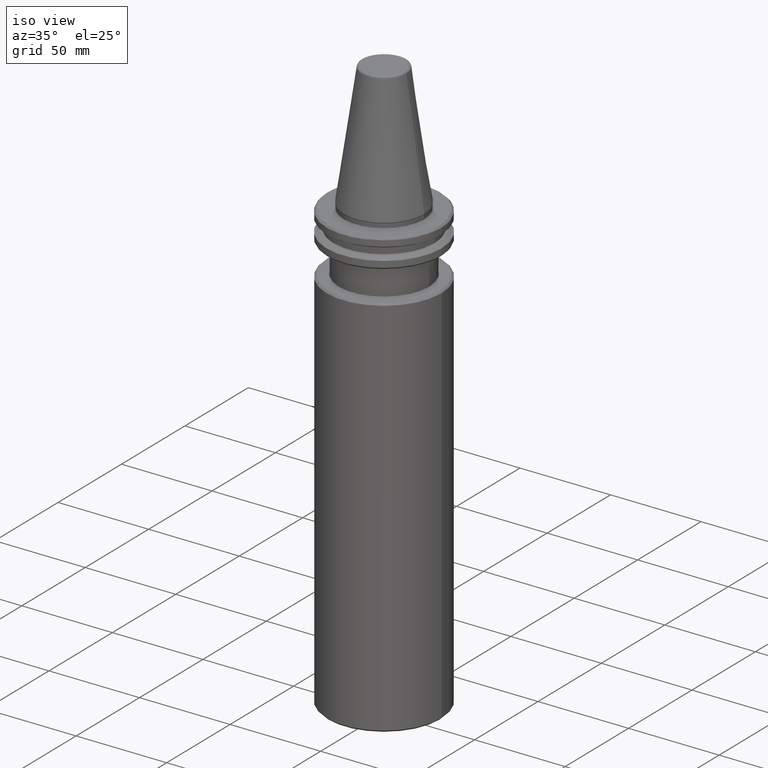
[diagram: clean part render]
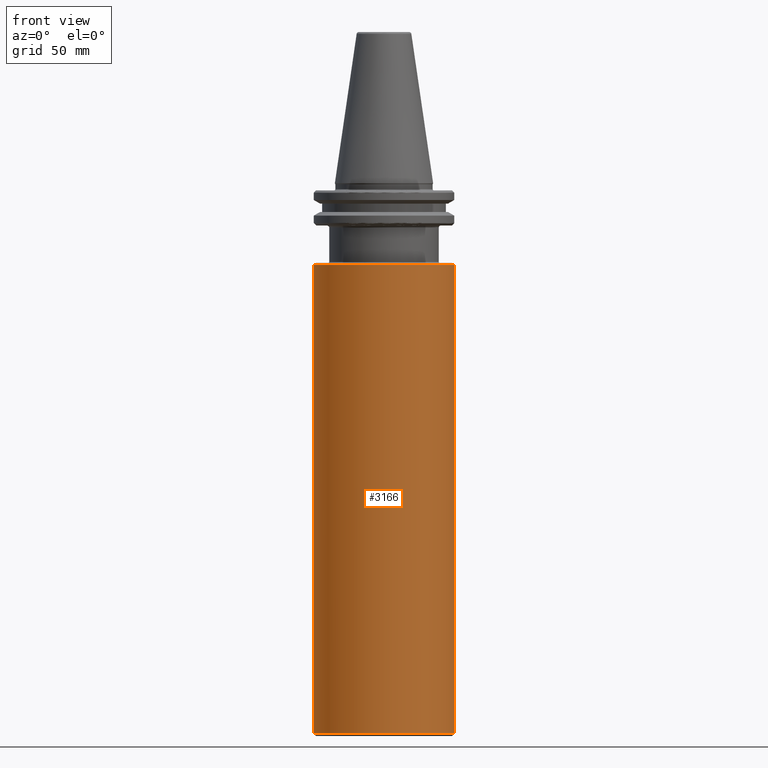
[diagram: tour spotlight — one face highlighted and labeled with its STEP entity id]
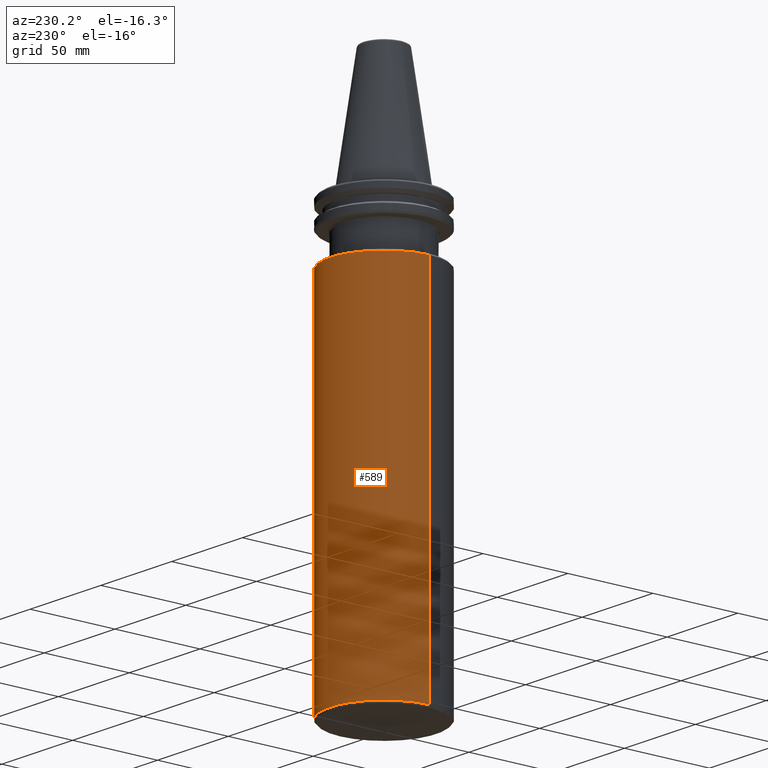
[diagram: tour spotlight — one face highlighted and labeled with its STEP entity id]
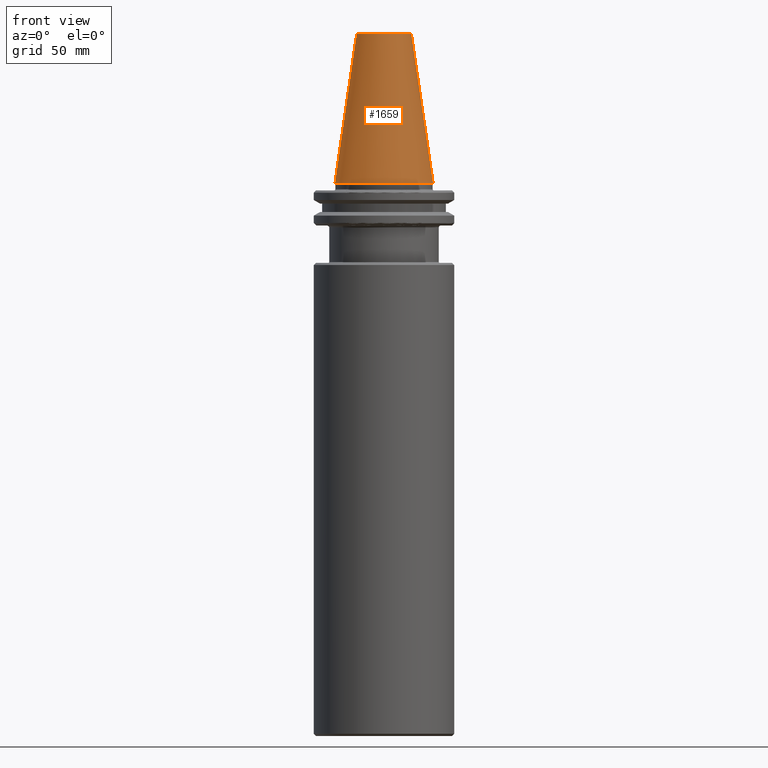
[diagram: tour spotlight — one face highlighted and labeled with its STEP entity id]
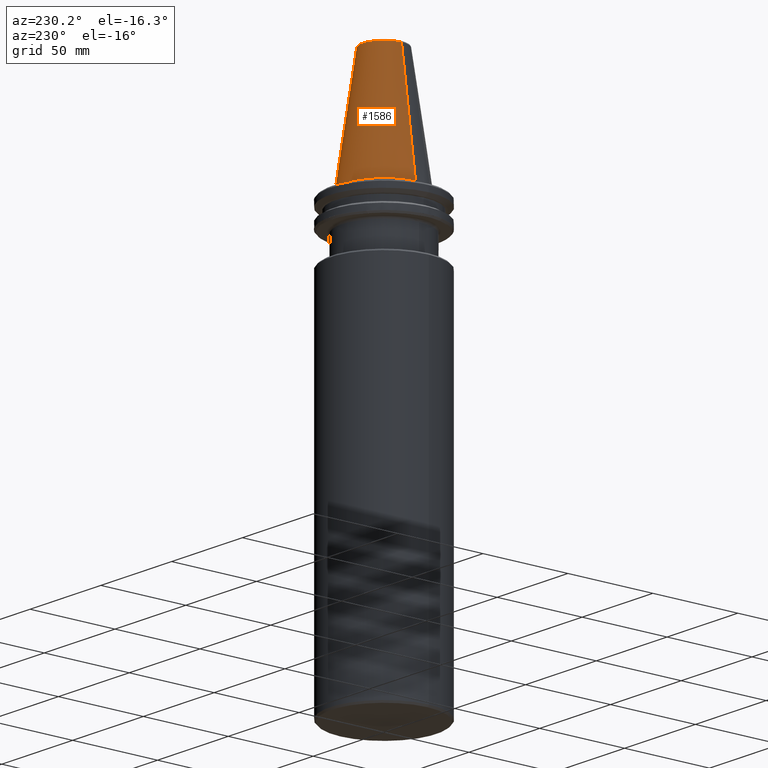
[diagram: tour spotlight — one face highlighted and labeled with its STEP entity id]
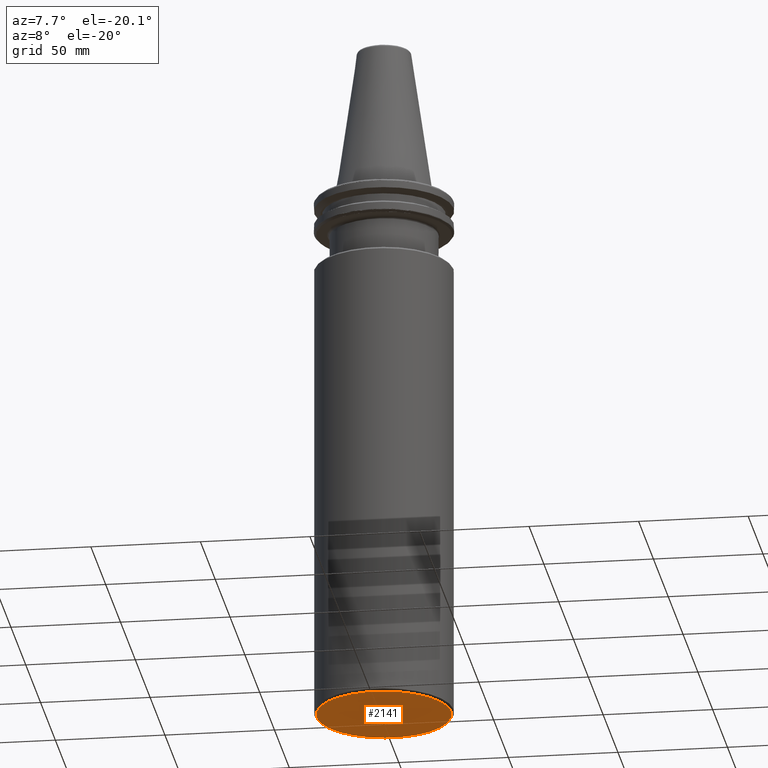
[diagram: tour spotlight — one face highlighted and labeled with its STEP entity id]
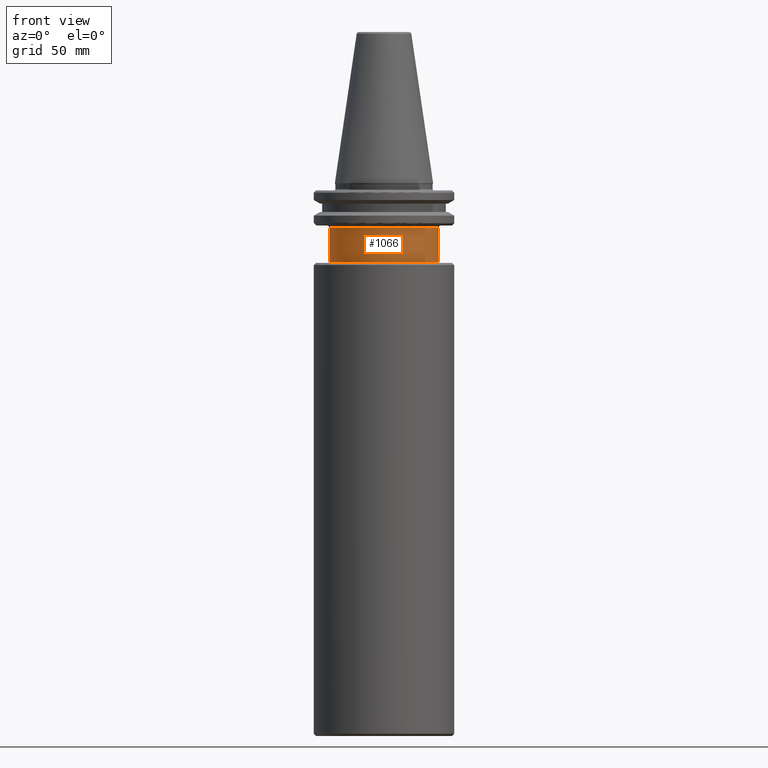
[diagram: tour spotlight — one face highlighted and labeled with its STEP entity id]
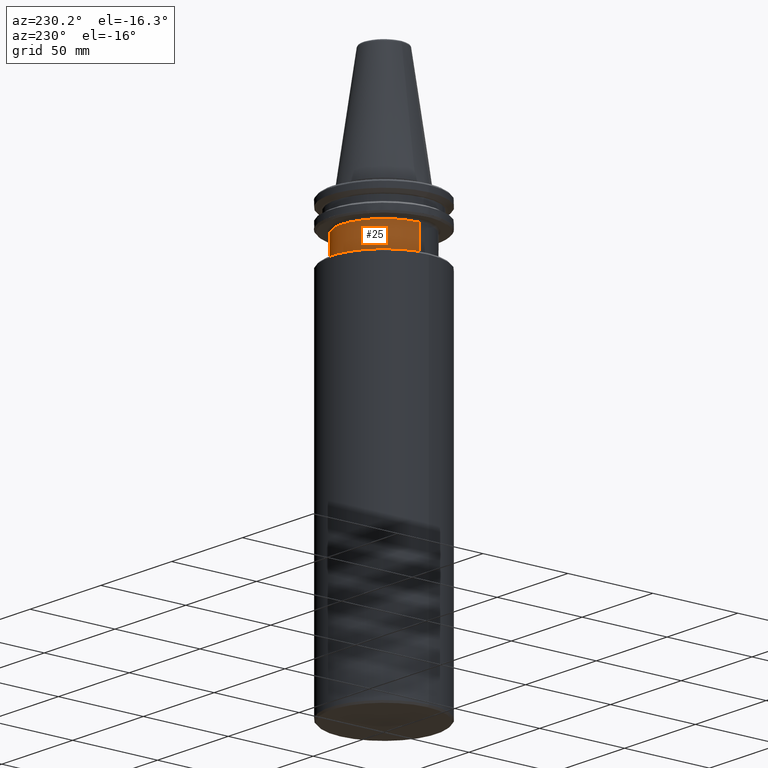
[diagram: tour spotlight — one face highlighted and labeled with its STEP entity id]
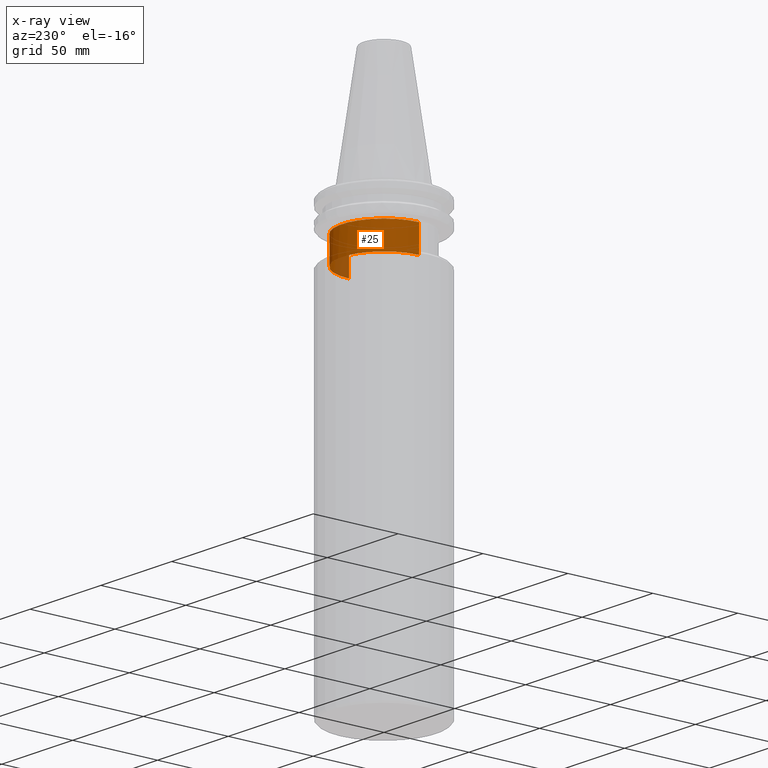
[diagram: x-ray of the same camera — body ghosted, this tour face saturated]
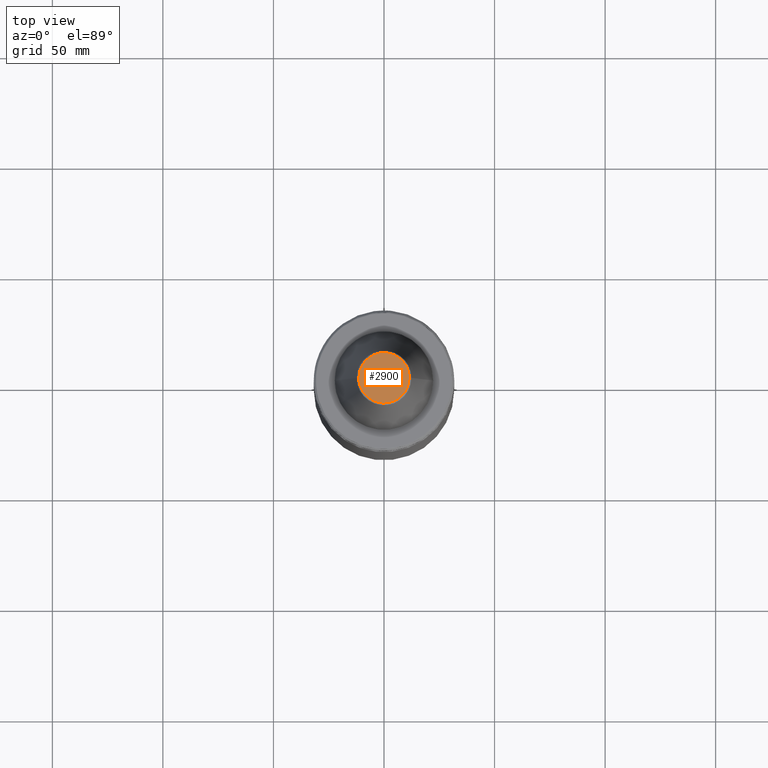
[diagram: tour spotlight — one face highlighted and labeled with its STEP entity id]
A machine part: a face-by-face anatomy tour. The part has 78 B-rep faces; the first image is the clean iso view, then the 8 largest visible faces are spotlighted one at a time (largest first), each with its STEP entity span.

Face 1 — front view, entity #3166. In plain terms, the highlighted cylindrical surface (partial cylindrical patch) has radius 31.75 mm, axis along (0, 0, 1).
Definition (entity closure, byte-faithful):
#197 = ORIENTED_EDGE ( 'NONE', *, *, #545, .F. ) ;
#265 = EDGE_CURVE ( 'NONE', #696, #858, #1075, .T. ) ;
#294 = DIRECTION ( 'NONE',  ( 1.000000000000000000, 0.0000000000000000000, 0.0000000000000000000 ) ) ;
#545 = EDGE_CURVE ( 'NONE', #696, #1625, #2609, .T. ) ;
#696 = VERTEX_POINT ( 'NONE', #3271 ) ;
#814 = FACE_OUTER_BOUND ( 'NONE', #1032, .T. ) ;
#841 = AXIS2_PLACEMENT_3D ( 'NONE', #2260, #1942, #294 ) ;
#858 = VERTEX_POINT ( 'NONE', #1643 ) ;
#1032 = EDGE_LOOP ( 'NONE', ( #197, #2545, #1083, #2692 ) ) ;
#1041 = DIRECTION ( 'NONE',  ( 0.0000000000000000000, 0.0000000000000000000, 1.000000000000000000 ) ) ;
#1047 = CARTESIAN_POINT ( 'NONE',  ( 31.75000000000000000, 0.0000000000000000000, 82.95681253582424100 ) ) ;
#1075 = CIRCLE ( 'NONE', #841, 31.75000000000000000 ) ;
#1083 = ORIENTED_EDGE ( 'NONE', *, *, #1793, .T. ) ;
#1139 = LINE ( 'NONE', #1047, #2979 ) ;
#1187 = VERTEX_POINT ( 'NONE', #2678 ) ;
#1227 = VECTOR ( 'NONE', #2076, 1000.000000000000000 ) ;
#1339 = CYLINDRICAL_SURFACE ( 'NONE', #2816, 31.75000000000000000 ) ;
#1499 = AXIS2_PLACEMENT_3D ( 'NONE', #2007, #2005, #1999 ) ;
#1625 = VERTEX_POINT ( 'NONE', #2603 ) ;
#1643 = CARTESIAN_POINT ( 'NONE',  ( 31.75000000000000000, 0.0000000000000000000, -248.9999999999999700 ) ) ;
#1793 = EDGE_CURVE ( 'NONE', #858, #1187, #1139, .T. ) ;
#1853 = CIRCLE ( 'NONE', #1499, 31.75000000000000000 ) ;
#1860 = CARTESIAN_POINT ( 'NONE',  ( -31.75000000000000000, 3.888253587292846500E-015, 82.95681253582424100 ) ) ;
#1942 = DIRECTION ( 'NONE',  ( 0.0000000000000000000, 0.0000000000000000000, 1.000000000000000000 ) ) ;
#1999 = DIRECTION ( 'NONE',  ( 1.000000000000000000, 0.0000000000000000000, 0.0000000000000000000 ) ) ;
#2005 = DIRECTION ( 'NONE',  ( -0.0000000000000000000, -0.0000000000000000000, -1.000000000000000000 ) ) ;
#2007 = CARTESIAN_POINT ( 'NONE',  ( 0.0000000000000000000, 0.0000000000000000000, -37.00000000000000700 ) ) ;
#2076 = DIRECTION ( 'NONE',  ( 0.0000000000000000000, 0.0000000000000000000, 1.000000000000000000 ) ) ;
#2260 = CARTESIAN_POINT ( 'NONE',  ( 0.0000000000000000000, 0.0000000000000000000, -248.9999999999999700 ) ) ;
#2329 = EDGE_CURVE ( 'NONE', #1187, #1625, #1853, .T. ) ;
#2545 = ORIENTED_EDGE ( 'NONE', *, *, #265, .T. ) ;
#2603 = CARTESIAN_POINT ( 'NONE',  ( -31.75000000000000000, 0.0000000000000000000, -37.00000000000000700 ) ) ;
#2609 = LINE ( 'NONE', #1860, #1227 ) ;
#2678 = CARTESIAN_POINT ( 'NONE',  ( 31.75000000000000000, 3.888253587292846500E-015, -37.00000000000000700 ) ) ;
#2692 = ORIENTED_EDGE ( 'NONE', *, *, #2329, .T. ) ;
#2816 = AXIS2_PLACEMENT_3D ( 'NONE', #2824, #3015, #2947 ) ;
#2824 = CARTESIAN_POINT ( 'NONE',  ( 0.0000000000000000000, 0.0000000000000000000, 82.95681253582424100 ) ) ;
#2947 = DIRECTION ( 'NONE',  ( 1.000000000000000000, 0.0000000000000000000, 0.0000000000000000000 ) ) ;
#2979 = VECTOR ( 'NONE', #1041, 1000.000000000000000 ) ;
#3015 = DIRECTION ( 'NONE',  ( 0.0000000000000000000, 0.0000000000000000000, 1.000000000000000000 ) ) ;
#3166 = ADVANCED_FACE ( 'NONE', ( #814 ), #1339, .T. ) ;
#3271 = CARTESIAN_POINT ( 'NONE',  ( -31.75000000000000000, 3.888253587292846500E-015, -248.9999999999999700 ) ) ;

Face 2 — auxiliary view, entity #589. In plain terms, the highlighted cylindrical surface (partial cylindrical patch) has radius 31.75 mm, axis along (0, 0, 1).
Definition (entity closure, byte-faithful):
#138 = ORIENTED_EDGE ( 'NONE', *, *, #2419, .T. ) ;
#160 = ORIENTED_EDGE ( 'NONE', *, *, #1340, .T. ) ;
#432 = CARTESIAN_POINT ( 'NONE',  ( 0.0000000000000000000, 0.0000000000000000000, -248.9999999999999700 ) ) ;
#534 = DIRECTION ( 'NONE',  ( 0.0000000000000000000, 0.0000000000000000000, 1.000000000000000000 ) ) ;
#545 = EDGE_CURVE ( 'NONE', #696, #1625, #2609, .T. ) ;
#569 = DIRECTION ( 'NONE',  ( 1.000000000000000000, 0.0000000000000000000, 0.0000000000000000000 ) ) ;
#589 = ADVANCED_FACE ( 'NONE', ( #2449 ), #1936, .T. ) ;
#696 = VERTEX_POINT ( 'NONE', #3271 ) ;
#705 = EDGE_LOOP ( 'NONE', ( #160, #855, #138, #2798 ) ) ;
#855 = ORIENTED_EDGE ( 'NONE', *, *, #545, .T. ) ;
#858 = VERTEX_POINT ( 'NONE', #1643 ) ;
#955 = CIRCLE ( 'NONE', #1884, 31.75000000000000000 ) ;
#1041 = DIRECTION ( 'NONE',  ( 0.0000000000000000000, 0.0000000000000000000, 1.000000000000000000 ) ) ;
#1047 = CARTESIAN_POINT ( 'NONE',  ( 31.75000000000000000, 0.0000000000000000000, 82.95681253582424100 ) ) ;
#1139 = LINE ( 'NONE', #1047, #2979 ) ;
#1187 = VERTEX_POINT ( 'NONE', #2678 ) ;
#1227 = VECTOR ( 'NONE', #2076, 1000.000000000000000 ) ;
#1265 = DIRECTION ( 'NONE',  ( 1.000000000000000000, 0.0000000000000000000, 0.0000000000000000000 ) ) ;
#1270 = DIRECTION ( 'NONE',  ( -0.0000000000000000000, -0.0000000000000000000, -1.000000000000000000 ) ) ;
#1272 = CARTESIAN_POINT ( 'NONE',  ( 0.0000000000000000000, 0.0000000000000000000, -37.00000000000000700 ) ) ;
#1340 = EDGE_CURVE ( 'NONE', #858, #696, #955, .T. ) ;
#1625 = VERTEX_POINT ( 'NONE', #2603 ) ;
#1643 = CARTESIAN_POINT ( 'NONE',  ( 31.75000000000000000, 0.0000000000000000000, -248.9999999999999700 ) ) ;
#1793 = EDGE_CURVE ( 'NONE', #858, #1187, #1139, .T. ) ;
#1831 = CARTESIAN_POINT ( 'NONE',  ( 0.0000000000000000000, 0.0000000000000000000, 82.95681253582424100 ) ) ;
#1860 = CARTESIAN_POINT ( 'NONE',  ( -31.75000000000000000, 3.888253587292846500E-015, 82.95681253582424100 ) ) ;
#1884 = AXIS2_PLACEMENT_3D ( 'NONE', #432, #534, #569 ) ;
#1936 = CYLINDRICAL_SURFACE ( 'NONE', #3199, 31.75000000000000000 ) ;
#2076 = DIRECTION ( 'NONE',  ( 0.0000000000000000000, 0.0000000000000000000, 1.000000000000000000 ) ) ;
#2310 = CIRCLE ( 'NONE', #3231, 31.75000000000000000 ) ;
#2419 = EDGE_CURVE ( 'NONE', #1625, #1187, #2310, .T. ) ;
#2449 = FACE_OUTER_BOUND ( 'NONE', #705, .T. ) ;
#2603 = CARTESIAN_POINT ( 'NONE',  ( -31.75000000000000000, 0.0000000000000000000, -37.00000000000000700 ) ) ;
#2609 = LINE ( 'NONE', #1860, #1227 ) ;
#2678 = CARTESIAN_POINT ( 'NONE',  ( 31.75000000000000000, 3.888253587292846500E-015, -37.00000000000000700 ) ) ;
#2798 = ORIENTED_EDGE ( 'NONE', *, *, #1793, .F. ) ;
#2936 = DIRECTION ( 'NONE',  ( 1.000000000000000000, 0.0000000000000000000, 0.0000000000000000000 ) ) ;
#2979 = VECTOR ( 'NONE', #1041, 1000.000000000000000 ) ;
#3065 = DIRECTION ( 'NONE',  ( 0.0000000000000000000, 0.0000000000000000000, 1.000000000000000000 ) ) ;
#3199 = AXIS2_PLACEMENT_3D ( 'NONE', #1831, #3065, #2936 ) ;
#3231 = AXIS2_PLACEMENT_3D ( 'NONE', #1272, #1270, #1265 ) ;
#3271 = CARTESIAN_POINT ( 'NONE',  ( -31.75000000000000000, 3.888253587292846500E-015, -248.9999999999999700 ) ) ;

Face 3 — front view, entity #1659. In plain terms, the highlighted conical surface has half-angle 8.297 deg.
Definition (entity closure, byte-faithful):
#22 = EDGE_CURVE ( 'NONE', #2230, #3232, #1819, .T. ) ;
#49 = ORIENTED_EDGE ( 'NONE', *, *, #1370, .T. ) ;
#687 = EDGE_LOOP ( 'NONE', ( #2909, #49, #2680, #2161 ) ) ;
#712 = AXIS2_PLACEMENT_3D ( 'NONE', #775, #772, #760 ) ;
#760 = DIRECTION ( 'NONE',  ( 1.000000000000000000, 0.0000000000000000000, 9.822541477422708000E-017 ) ) ;
#772 = DIRECTION ( 'NONE',  ( -0.0000000000000000000, -0.0000000000000000000, -1.000000000000000000 ) ) ;
#775 = CARTESIAN_POINT ( 'NONE',  ( 0.0000000000000000000, 0.0000000000000000000, 0.0000000000000000000 ) ) ;
#829 = VECTOR ( 'NONE', #1905, 1000.000000000000000 ) ;
#857 = AXIS2_PLACEMENT_3D ( 'NONE', #3239, #1380, #1185 ) ;
#873 = EDGE_CURVE ( 'NONE', #1803, #2248, #1448, .T. ) ;
#1019 = CARTESIAN_POINT ( 'NONE',  ( 12.37469537611110800, 2.118620309691397300E-015, 67.54430822726729400 ) ) ;
#1129 = VECTOR ( 'NONE', #1868, 1000.000000000000000 ) ;
#1185 = DIRECTION ( 'NONE',  ( -1.000000000000000000, 0.0000000000000000000, 0.0000000000000000000 ) ) ;
#1370 = EDGE_CURVE ( 'NONE', #1803, #2230, #2851, .T. ) ;
#1380 = DIRECTION ( 'NONE',  ( 0.0000000000000000000, 0.0000000000000000000, -1.000000000000000000 ) ) ;
#1448 = LINE ( 'NONE', #3313, #829 ) ;
#1482 = CARTESIAN_POINT ( 'NONE',  ( -22.22500000000000100, 0.0000000000000000000, 0.0000000000000000000 ) ) ;
#1659 = ADVANCED_FACE ( 'NONE', ( #3132 ), #1692, .T. ) ;
#1692 = CONICAL_SURFACE ( 'NONE', #1744, 22.22500000000000100, 0.1448138465474190500 ) ;
#1744 = AXIS2_PLACEMENT_3D ( 'NONE', #2325, #2314, #2302 ) ;
#1803 = VERTEX_POINT ( 'NONE', #1019 ) ;
#1819 = LINE ( 'NONE', #1482, #1129 ) ;
#1838 = EDGE_CURVE ( 'NONE', #2248, #3232, #2893, .T. ) ;
#1868 = DIRECTION ( 'NONE',  ( -0.1443082272673070500, 0.0000000000000000000, -0.9895327864921743500 ) ) ;
#1905 = DIRECTION ( 'NONE',  ( 0.1443082272673070500, 1.767266086135363700E-017, -0.9895327864921743500 ) ) ;
#2161 = ORIENTED_EDGE ( 'NONE', *, *, #1838, .F. ) ;
#2197 = CARTESIAN_POINT ( 'NONE',  ( 22.22500000000000100, 2.721777511104992800E-015, 0.0000000000000000000 ) ) ;
#2230 = VERTEX_POINT ( 'NONE', #2270 ) ;
#2248 = VERTEX_POINT ( 'NONE', #2197 ) ;
#2270 = CARTESIAN_POINT ( 'NONE',  ( -12.37469537611110800, 0.0000000000000000000, 67.54430822726729400 ) ) ;
#2302 = DIRECTION ( 'NONE',  ( -1.000000000000000000, 0.0000000000000000000, 0.0000000000000000000 ) ) ;
#2314 = DIRECTION ( 'NONE',  ( 0.0000000000000000000, 0.0000000000000000000, -1.000000000000000000 ) ) ;
#2325 = CARTESIAN_POINT ( 'NONE',  ( 0.0000000000000000000, 0.0000000000000000000, 0.0000000000000000000 ) ) ;
#2680 = ORIENTED_EDGE ( 'NONE', *, *, #22, .T. ) ;
#2851 = CIRCLE ( 'NONE', #857, 12.37469537611110800 ) ;
#2893 = CIRCLE ( 'NONE', #712, 22.22500000000000500 ) ;
#2909 = ORIENTED_EDGE ( 'NONE', *, *, #873, .F. ) ;
#3132 = FACE_OUTER_BOUND ( 'NONE', #687, .T. ) ;
#3232 = VERTEX_POINT ( 'NONE', #3312 ) ;
#3239 = CARTESIAN_POINT ( 'NONE',  ( 0.0000000000000000000, 0.0000000000000000000, 67.54430822726729400 ) ) ;
#3312 = CARTESIAN_POINT ( 'NONE',  ( -22.22500000000000100, 0.0000000000000000000, 0.0000000000000000000 ) ) ;
#3313 = CARTESIAN_POINT ( 'NONE',  ( 22.22500000000000100, 2.721777511104992800E-015, 0.0000000000000000000 ) ) ;

Face 4 — auxiliary view, entity #1586. In plain terms, the highlighted conical surface has half-angle 8.297 deg.
Definition (entity closure, byte-faithful):
#22 = EDGE_CURVE ( 'NONE', #2230, #3232, #1819, .T. ) ;
#438 = ORIENTED_EDGE ( 'NONE', *, *, #22, .F. ) ;
#440 = EDGE_CURVE ( 'NONE', #2230, #1803, #3339, .T. ) ;
#829 = VECTOR ( 'NONE', #1905, 1000.000000000000000 ) ;
#873 = EDGE_CURVE ( 'NONE', #1803, #2248, #1448, .T. ) ;
#1019 = CARTESIAN_POINT ( 'NONE',  ( 12.37469537611110800, 2.118620309691397300E-015, 67.54430822726729400 ) ) ;
#1027 = ORIENTED_EDGE ( 'NONE', *, *, #1122, .F. ) ;
#1079 = AXIS2_PLACEMENT_3D ( 'NONE', #2778, #2723, #2768 ) ;
#1122 = EDGE_CURVE ( 'NONE', #3232, #2248, #2339, .T. ) ;
#1129 = VECTOR ( 'NONE', #1868, 1000.000000000000000 ) ;
#1149 = CARTESIAN_POINT ( 'NONE',  ( 0.0000000000000000000, 0.0000000000000000000, 67.54430822726729400 ) ) ;
#1448 = LINE ( 'NONE', #3313, #829 ) ;
#1482 = CARTESIAN_POINT ( 'NONE',  ( -22.22500000000000100, 0.0000000000000000000, 0.0000000000000000000 ) ) ;
#1586 = ADVANCED_FACE ( 'NONE', ( #3290 ), #3213, .T. ) ;
#1636 = ORIENTED_EDGE ( 'NONE', *, *, #440, .T. ) ;
#1656 = AXIS2_PLACEMENT_3D ( 'NONE', #2551, #2572, #2579 ) ;
#1803 = VERTEX_POINT ( 'NONE', #1019 ) ;
#1819 = LINE ( 'NONE', #1482, #1129 ) ;
#1868 = DIRECTION ( 'NONE',  ( -0.1443082272673070500, 0.0000000000000000000, -0.9895327864921743500 ) ) ;
#1905 = DIRECTION ( 'NONE',  ( 0.1443082272673070500, 1.767266086135363700E-017, -0.9895327864921743500 ) ) ;
#1986 = DIRECTION ( 'NONE',  ( 0.0000000000000000000, 0.0000000000000000000, -1.000000000000000000 ) ) ;
#2197 = CARTESIAN_POINT ( 'NONE',  ( 22.22500000000000100, 2.721777511104992800E-015, 0.0000000000000000000 ) ) ;
#2230 = VERTEX_POINT ( 'NONE', #2270 ) ;
#2232 = DIRECTION ( 'NONE',  ( -1.000000000000000000, 0.0000000000000000000, 0.0000000000000000000 ) ) ;
#2248 = VERTEX_POINT ( 'NONE', #2197 ) ;
#2270 = CARTESIAN_POINT ( 'NONE',  ( -12.37469537611110800, 0.0000000000000000000, 67.54430822726729400 ) ) ;
#2339 = CIRCLE ( 'NONE', #1656, 22.22500000000000500 ) ;
#2417 = ORIENTED_EDGE ( 'NONE', *, *, #873, .T. ) ;
#2551 = CARTESIAN_POINT ( 'NONE',  ( 0.0000000000000000000, 0.0000000000000000000, 0.0000000000000000000 ) ) ;
#2572 = DIRECTION ( 'NONE',  ( -0.0000000000000000000, -0.0000000000000000000, -1.000000000000000000 ) ) ;
#2579 = DIRECTION ( 'NONE',  ( 1.000000000000000000, 0.0000000000000000000, 9.822541477422708000E-017 ) ) ;
#2698 = AXIS2_PLACEMENT_3D ( 'NONE', #1149, #1986, #2232 ) ;
#2723 = DIRECTION ( 'NONE',  ( 0.0000000000000000000, 0.0000000000000000000, -1.000000000000000000 ) ) ;
#2768 = DIRECTION ( 'NONE',  ( -1.000000000000000000, 0.0000000000000000000, 0.0000000000000000000 ) ) ;
#2778 = CARTESIAN_POINT ( 'NONE',  ( 0.0000000000000000000, 0.0000000000000000000, 0.0000000000000000000 ) ) ;
#2924 = EDGE_LOOP ( 'NONE', ( #1636, #2417, #1027, #438 ) ) ;
#3213 = CONICAL_SURFACE ( 'NONE', #1079, 22.22500000000000100, 0.1448138465474190500 ) ;
#3232 = VERTEX_POINT ( 'NONE', #3312 ) ;
#3290 = FACE_OUTER_BOUND ( 'NONE', #2924, .T. ) ;
#3312 = CARTESIAN_POINT ( 'NONE',  ( -22.22500000000000100, 0.0000000000000000000, 0.0000000000000000000 ) ) ;
#3313 = CARTESIAN_POINT ( 'NONE',  ( 22.22500000000000100, 2.721777511104992800E-015, 0.0000000000000000000 ) ) ;
#3339 = CIRCLE ( 'NONE', #2698, 12.37469537611110800 ) ;

Face 5 — auxiliary view, entity #2141. In plain terms, the highlighted planar face has unit normal (0, 0, 1).
Definition (entity closure, byte-faithful):
#392 = EDGE_LOOP ( 'NONE', ( #2396, #1906 ) ) ;
#469 = VERTEX_POINT ( 'NONE', #1520 ) ;
#507 = DIRECTION ( 'NONE',  ( 1.000000000000000000, 0.0000000000000000000, 0.0000000000000000000 ) ) ;
#649 = CIRCLE ( 'NONE', #3153, 30.75000000000000000 ) ;
#959 = DIRECTION ( 'NONE',  ( 0.0000000000000000000, -0.0000000000000000000, 1.000000000000000000 ) ) ;
#1454 = VERTEX_POINT ( 'NONE', #3310 ) ;
#1520 = CARTESIAN_POINT ( 'NONE',  ( -30.75000000000000000, 3.827021247335478900E-015, -249.9999999999999700 ) ) ;
#1906 = ORIENTED_EDGE ( 'NONE', *, *, #3221, .F. ) ;
#1918 = AXIS2_PLACEMENT_3D ( 'NONE', #2410, #2407, #2402 ) ;
#2110 = FACE_OUTER_BOUND ( 'NONE', #392, .T. ) ;
#2141 = ADVANCED_FACE ( 'NONE', ( #2110 ), #2431, .F. ) ;
#2396 = ORIENTED_EDGE ( 'NONE', *, *, #3256, .F. ) ;
#2402 = DIRECTION ( 'NONE',  ( 1.000000000000000000, 0.0000000000000000000, -0.0000000000000000000 ) ) ;
#2407 = DIRECTION ( 'NONE',  ( 0.0000000000000000000, 0.0000000000000000000, 1.000000000000000000 ) ) ;
#2410 = CARTESIAN_POINT ( 'NONE',  ( 0.0000000000000000000, 30.75000000000000000, -250.0000000000000000 ) ) ;
#2431 = PLANE ( 'NONE',  #1918 ) ;
#2459 = AXIS2_PLACEMENT_3D ( 'NONE', #3354, #959, #507 ) ;
#2534 = DIRECTION ( 'NONE',  ( 1.000000000000000000, 0.0000000000000000000, 0.0000000000000000000 ) ) ;
#2727 = CIRCLE ( 'NONE', #2459, 30.75000000000000000 ) ;
#2985 = DIRECTION ( 'NONE',  ( 0.0000000000000000000, -0.0000000000000000000, 1.000000000000000000 ) ) ;
#2998 = CARTESIAN_POINT ( 'NONE',  ( 0.0000000000000000000, 0.0000000000000000000, -249.9999999999999700 ) ) ;
#3153 = AXIS2_PLACEMENT_3D ( 'NONE', #2998, #2985, #2534 ) ;
#3221 = EDGE_CURVE ( 'NONE', #469, #1454, #2727, .T. ) ;
#3256 = EDGE_CURVE ( 'NONE', #1454, #469, #649, .T. ) ;
#3310 = CARTESIAN_POINT ( 'NONE',  ( 30.75000000000000000, 0.0000000000000000000, -249.9999999999999700 ) ) ;
#3354 = CARTESIAN_POINT ( 'NONE',  ( 0.0000000000000000000, 0.0000000000000000000, -249.9999999999999700 ) ) ;

Face 6 — front view, entity #1066. In plain terms, the highlighted cylindrical surface (partial cylindrical patch) has radius 24.75 mm, axis along (0, 0, 1).
Definition (entity closure, byte-faithful):
#8 = DIRECTION ( 'NONE',  ( 0.0000000000000000000, 0.0000000000000000000, 1.000000000000000000 ) ) ;
#19 = VERTEX_POINT ( 'NONE', #2352 ) ;
#50 = ORIENTED_EDGE ( 'NONE', *, *, #2491, .T. ) ;
#54 = DIRECTION ( 'NONE',  ( 0.0000000000000000000, 0.0000000000000000000, 1.000000000000000000 ) ) ;
#85 = CARTESIAN_POINT ( 'NONE',  ( 24.75000000000000000, 0.0000000000000000000, 82.95681253582424100 ) ) ;
#206 = CARTESIAN_POINT ( 'NONE',  ( 0.0000000000000000000, 0.0000000000000000000, 82.95681253582424100 ) ) ;
#242 = DIRECTION ( 'NONE',  ( 1.000000000000000000, 0.0000000000000000000, 0.0000000000000000000 ) ) ;
#252 = DIRECTION ( 'NONE',  ( 0.0000000000000000000, 0.0000000000000000000, 1.000000000000000000 ) ) ;
#487 = FACE_OUTER_BOUND ( 'NONE', #2208, .T. ) ;
#566 = VECTOR ( 'NONE', #8, 1000.000000000000000 ) ;
#663 = LINE ( 'NONE', #3170, #2651 ) ;
#675 = VERTEX_POINT ( 'NONE', #2009 ) ;
#719 = CIRCLE ( 'NONE', #1036, 24.75000000000000000 ) ;
#980 = EDGE_CURVE ( 'NONE', #675, #19, #663, .T. ) ;
#1007 = EDGE_CURVE ( 'NONE', #1433, #1455, #3333, .T. ) ;
#1036 = AXIS2_PLACEMENT_3D ( 'NONE', #2131, #2126, #2120 ) ;
#1037 = DIRECTION ( 'NONE',  ( 1.000000000000000000, 0.0000000000000000000, 0.0000000000000000000 ) ) ;
#1042 = DIRECTION ( 'NONE',  ( -0.0000000000000000000, -0.0000000000000000000, -1.000000000000000000 ) ) ;
#1048 = CARTESIAN_POINT ( 'NONE',  ( 0.0000000000000000000, 0.0000000000000000000, -20.10000000000000900 ) ) ;
#1066 = ADVANCED_FACE ( 'NONE', ( #487 ), #2418, .T. ) ;
#1115 = VERTEX_POINT ( 'NONE', #2512 ) ;
#1433 = VERTEX_POINT ( 'NONE', #3301 ) ;
#1434 = CIRCLE ( 'NONE', #1493, 24.75000000000000700 ) ;
#1455 = VERTEX_POINT ( 'NONE', #3267 ) ;
#1493 = AXIS2_PLACEMENT_3D ( 'NONE', #3069, #3074, #3081 ) ;
#1669 = ORIENTED_EDGE ( 'NONE', *, *, #980, .F. ) ;
#1736 = AXIS2_PLACEMENT_3D ( 'NONE', #206, #252, #242 ) ;
#2009 = CARTESIAN_POINT ( 'NONE',  ( -24.75000000000000000, 3.031000827889699300E-015, -35.60000000000000900 ) ) ;
#2019 = ORIENTED_EDGE ( 'NONE', *, *, #3162, .F. ) ;
#2120 = DIRECTION ( 'NONE',  ( 1.000000000000000000, 0.0000000000000000000, 0.0000000000000000000 ) ) ;
#2126 = DIRECTION ( 'NONE',  ( 0.0000000000000000000, 0.0000000000000000000, 1.000000000000000000 ) ) ;
#2131 = CARTESIAN_POINT ( 'NONE',  ( 0.0000000000000000000, 0.0000000000000000000, -35.60000000000000900 ) ) ;
#2208 = EDGE_LOOP ( 'NONE', ( #1669, #2574, #3318, #2019, #50 ) ) ;
#2268 = EDGE_CURVE ( 'NONE', #675, #1433, #719, .T. ) ;
#2352 = CARTESIAN_POINT ( 'NONE',  ( -24.75000000000000000, 3.031000827889699300E-015, -20.10000000000000900 ) ) ;
#2418 = CYLINDRICAL_SURFACE ( 'NONE', #1736, 24.75000000000000000 ) ;
#2491 = EDGE_CURVE ( 'NONE', #1115, #19, #2833, .T. ) ;
#2512 = CARTESIAN_POINT ( 'NONE',  ( 23.42562699267621400, -7.987646712267643800, -20.10000000000000900 ) ) ;
#2574 = ORIENTED_EDGE ( 'NONE', *, *, #2268, .T. ) ;
#2651 = VECTOR ( 'NONE', #54, 1000.000000000000000 ) ;
#2711 = AXIS2_PLACEMENT_3D ( 'NONE', #1048, #1042, #1037 ) ;
#2833 = CIRCLE ( 'NONE', #2711, 24.75000000000000000 ) ;
#3069 = CARTESIAN_POINT ( 'NONE',  ( 0.0000000000000000000, 0.0000000000000000000, -20.10000000000000900 ) ) ;
#3074 = DIRECTION ( 'NONE',  ( -0.0000000000000000000, -0.0000000000000000000, 1.000000000000000000 ) ) ;
#3081 = DIRECTION ( 'NONE',  ( 1.000000000000000000, 0.0000000000000000000, 0.0000000000000000000 ) ) ;
#3162 = EDGE_CURVE ( 'NONE', #1115, #1455, #1434, .T. ) ;
#3170 = CARTESIAN_POINT ( 'NONE',  ( -24.75000000000000000, 3.031000827889699300E-015, 82.95681253582424100 ) ) ;
#3267 = CARTESIAN_POINT ( 'NONE',  ( 24.75000000000000700, 0.0000000000000000000, -20.10000000000000900 ) ) ;
#3301 = CARTESIAN_POINT ( 'NONE',  ( 24.75000000000000000, 0.0000000000000000000, -35.60000000000000900 ) ) ;
#3318 = ORIENTED_EDGE ( 'NONE', *, *, #1007, .T. ) ;
#3333 = LINE ( 'NONE', #85, #566 ) ;

Face 7 — auxiliary view, entity #25. An x-ray twin of the same camera follows (body ghosted, this face saturated) — the face is partly hidden behind the body. In plain terms, the highlighted cylindrical surface (partial cylindrical patch) has radius 24.75 mm, axis along (0, 0, 1).
Definition (entity closure, byte-faithful):
#8 = DIRECTION ( 'NONE',  ( 0.0000000000000000000, 0.0000000000000000000, 1.000000000000000000 ) ) ;
#19 = VERTEX_POINT ( 'NONE', #2352 ) ;
#25 = ADVANCED_FACE ( 'NONE', ( #3201 ), #2461, .T. ) ;
#38 = DIRECTION ( 'NONE',  ( 1.000000000000000000, 0.0000000000000000000, 0.0000000000000000000 ) ) ;
#54 = DIRECTION ( 'NONE',  ( 0.0000000000000000000, 0.0000000000000000000, 1.000000000000000000 ) ) ;
#85 = CARTESIAN_POINT ( 'NONE',  ( 24.75000000000000000, 0.0000000000000000000, 82.95681253582424100 ) ) ;
#87 = DIRECTION ( 'NONE',  ( 0.0000000000000000000, 0.0000000000000000000, 1.000000000000000000 ) ) ;
#305 = CIRCLE ( 'NONE', #2415, 24.75000000000000000 ) ;
#345 = AXIS2_PLACEMENT_3D ( 'NONE', #697, #87, #38 ) ;
#455 = EDGE_CURVE ( 'NONE', #1433, #675, #2150, .T. ) ;
#566 = VECTOR ( 'NONE', #8, 1000.000000000000000 ) ;
#622 = EDGE_CURVE ( 'NONE', #1455, #2746, #2526, .T. ) ;
#663 = LINE ( 'NONE', #3170, #2651 ) ;
#675 = VERTEX_POINT ( 'NONE', #2009 ) ;
#697 = CARTESIAN_POINT ( 'NONE',  ( 0.0000000000000000000, 0.0000000000000000000, 82.95681253582424100 ) ) ;
#917 = DIRECTION ( 'NONE',  ( 1.000000000000000000, 0.0000000000000000000, 0.0000000000000000000 ) ) ;
#980 = EDGE_CURVE ( 'NONE', #675, #19, #663, .T. ) ;
#1007 = EDGE_CURVE ( 'NONE', #1433, #1455, #3333, .T. ) ;
#1065 = DIRECTION ( 'NONE',  ( 1.000000000000000000, 0.0000000000000000000, 0.0000000000000000000 ) ) ;
#1074 = DIRECTION ( 'NONE',  ( -0.0000000000000000000, -0.0000000000000000000, -1.000000000000000000 ) ) ;
#1080 = CARTESIAN_POINT ( 'NONE',  ( 0.0000000000000000000, 0.0000000000000000000, -20.10000000000000900 ) ) ;
#1102 = EDGE_LOOP ( 'NONE', ( #1382, #1478, #1995, #3273, #3335 ) ) ;
#1112 = DIRECTION ( 'NONE',  ( 1.000000000000000000, 0.0000000000000000000, 0.0000000000000000000 ) ) ;
#1382 = ORIENTED_EDGE ( 'NONE', *, *, #455, .T. ) ;
#1433 = VERTEX_POINT ( 'NONE', #3301 ) ;
#1455 = VERTEX_POINT ( 'NONE', #3267 ) ;
#1478 = ORIENTED_EDGE ( 'NONE', *, *, #980, .T. ) ;
#1618 = DIRECTION ( 'NONE',  ( -0.0000000000000000000, -0.0000000000000000000, 1.000000000000000000 ) ) ;
#1869 = CARTESIAN_POINT ( 'NONE',  ( 0.0000000000000000000, 0.0000000000000000000, -20.10000000000000900 ) ) ;
#1877 = CARTESIAN_POINT ( 'NONE',  ( 0.0000000000000000000, 0.0000000000000000000, -35.60000000000000900 ) ) ;
#1995 = ORIENTED_EDGE ( 'NONE', *, *, #2474, .T. ) ;
#2009 = CARTESIAN_POINT ( 'NONE',  ( -24.75000000000000000, 3.031000827889699300E-015, -35.60000000000000900 ) ) ;
#2014 = DIRECTION ( 'NONE',  ( 0.0000000000000000000, 0.0000000000000000000, 1.000000000000000000 ) ) ;
#2150 = CIRCLE ( 'NONE', #3226, 24.75000000000000000 ) ;
#2352 = CARTESIAN_POINT ( 'NONE',  ( -24.75000000000000000, 3.031000827889699300E-015, -20.10000000000000900 ) ) ;
#2415 = AXIS2_PLACEMENT_3D ( 'NONE', #1080, #1074, #1065 ) ;
#2461 = CYLINDRICAL_SURFACE ( 'NONE', #345, 24.75000000000000000 ) ;
#2474 = EDGE_CURVE ( 'NONE', #19, #2746, #305, .T. ) ;
#2526 = CIRCLE ( 'NONE', #3255, 24.75000000000000700 ) ;
#2651 = VECTOR ( 'NONE', #54, 1000.000000000000000 ) ;
#2746 = VERTEX_POINT ( 'NONE', #2849 ) ;
#2849 = CARTESIAN_POINT ( 'NONE',  ( 23.42562699267621100, 7.987646712267638400, -20.10000000000000900 ) ) ;
#3170 = CARTESIAN_POINT ( 'NONE',  ( -24.75000000000000000, 3.031000827889699300E-015, 82.95681253582424100 ) ) ;
#3201 = FACE_OUTER_BOUND ( 'NONE', #1102, .T. ) ;
#3226 = AXIS2_PLACEMENT_3D ( 'NONE', #1877, #2014, #917 ) ;
#3255 = AXIS2_PLACEMENT_3D ( 'NONE', #1869, #1618, #1112 ) ;
#3267 = CARTESIAN_POINT ( 'NONE',  ( 24.75000000000000700, 0.0000000000000000000, -20.10000000000000900 ) ) ;
#3273 = ORIENTED_EDGE ( 'NONE', *, *, #622, .F. ) ;
#3301 = CARTESIAN_POINT ( 'NONE',  ( 24.75000000000000000, 0.0000000000000000000, -35.60000000000000900 ) ) ;
#3333 = LINE ( 'NONE', #85, #566 ) ;
#3335 = ORIENTED_EDGE ( 'NONE', *, *, #1007, .F. ) ;

Face 8 — top view, entity #2900. In plain terms, the highlighted planar face has unit normal (0, 0, 1).
Definition (entity closure, byte-faithful):
#291 = VERTEX_POINT ( 'NONE', #3234 ) ;
#592 = VERTEX_POINT ( 'NONE', #1840 ) ;
#1010 = EDGE_LOOP ( 'NONE', ( #2660, #1540 ) ) ;
#1072 = EDGE_CURVE ( 'NONE', #592, #291, #1120, .T. ) ;
#1120 =( BOUNDED_CURVE ( )  B_SPLINE_CURVE ( 3, ( #2182, #2181, #2198, #2203 ),
 .UNSPECIFIED., .F., .F. ) 
 B_SPLINE_CURVE_WITH_KNOTS ( ( 4, 4 ),
 ( 0.0000000000000000000, 1.000000000000000000 ),
 .UNSPECIFIED. ) 
 CURVE ( )  GEOMETRIC_REPRESENTATION_ITEM ( )  RATIONAL_B_SPLINE_CURVE ( ( 1.000000000000000000, 0.3333333333333333700, 0.3333333333333333700, 1.000000000000000000 ) ) 
 REPRESENTATION_ITEM ( '' )  );
#1540 = ORIENTED_EDGE ( 'NONE', *, *, #1072, .F. ) ;
#1754 = CARTESIAN_POINT ( 'NONE',  ( -11.38516258961893100, 1.418516855507481500E-015, 68.39999999999999100 ) ) ;
#1757 = AXIS2_PLACEMENT_3D ( 'NONE', #2712, #2720, #2794 ) ;
#1827 =( BOUNDED_CURVE ( )  B_SPLINE_CURVE ( 3, ( #1754, #3372, #3360, #3353 ),
 .UNSPECIFIED., .F., .T. ) 
 B_SPLINE_CURVE_WITH_KNOTS ( ( 4, 4 ),
 ( 0.0000000000000000000, 1.000000000000000000 ),
 .UNSPECIFIED. ) 
 CURVE ( )  GEOMETRIC_REPRESENTATION_ITEM ( )  RATIONAL_B_SPLINE_CURVE ( ( 1.000000000000000000, 0.3333333333333333700, 0.3333333333333333700, 1.000000000000000000 ) ) 
 REPRESENTATION_ITEM ( '' )  );
#1840 = CARTESIAN_POINT ( 'NONE',  ( 11.38516258961893100, 0.0000000000000000000, 68.39999999999999100 ) ) ;
#1988 = EDGE_CURVE ( 'NONE', #291, #592, #1827, .T. ) ;
#2181 = CARTESIAN_POINT ( 'NONE',  ( 11.38516258961893100, -22.77032517923785800, 68.39999999999999100 ) ) ;
#2182 = CARTESIAN_POINT ( 'NONE',  ( 11.38516258961893100, 0.0000000000000000000, 68.39999999999999100 ) ) ;
#2198 = CARTESIAN_POINT ( 'NONE',  ( -11.38516258961893400, -22.77032517923785800, 68.39999999999999100 ) ) ;
#2203 = CARTESIAN_POINT ( 'NONE',  ( -11.38516258961893100, 1.418516855507481500E-015, 68.39999999999999100 ) ) ;
#2515 = FACE_OUTER_BOUND ( 'NONE', #1010, .T. ) ;
#2660 = ORIENTED_EDGE ( 'NONE', *, *, #1988, .F. ) ;
#2697 = PLANE ( 'NONE',  #1757 ) ;
#2712 = CARTESIAN_POINT ( 'NONE',  ( 0.0000000000000000000, -8.337524199435086500E-014, 68.39999999999999100 ) ) ;
#2720 = DIRECTION ( 'NONE',  ( 0.0000000000000000000, 0.0000000000000000000, 1.000000000000000000 ) ) ;
#2794 = DIRECTION ( 'NONE',  ( 1.000000000000000000, 0.0000000000000000000, -0.0000000000000000000 ) ) ;
#2900 = ADVANCED_FACE ( 'NONE', ( #2515 ), #2697, .T. ) ;
#3234 = CARTESIAN_POINT ( 'NONE',  ( -11.38516258961893100, 1.418516855507481500E-015, 68.39999999999999100 ) ) ;
#3353 = CARTESIAN_POINT ( 'NONE',  ( 11.38516258961893100, 0.0000000000000000000, 68.39999999999999100 ) ) ;
#3360 = CARTESIAN_POINT ( 'NONE',  ( 11.38516258961893100, 22.77032517923785800, 68.39999999999999100 ) ) ;
#3372 = CARTESIAN_POINT ( 'NONE',  ( -11.38516258961892700, 22.77032517923785800, 68.39999999999999100 ) ) ;